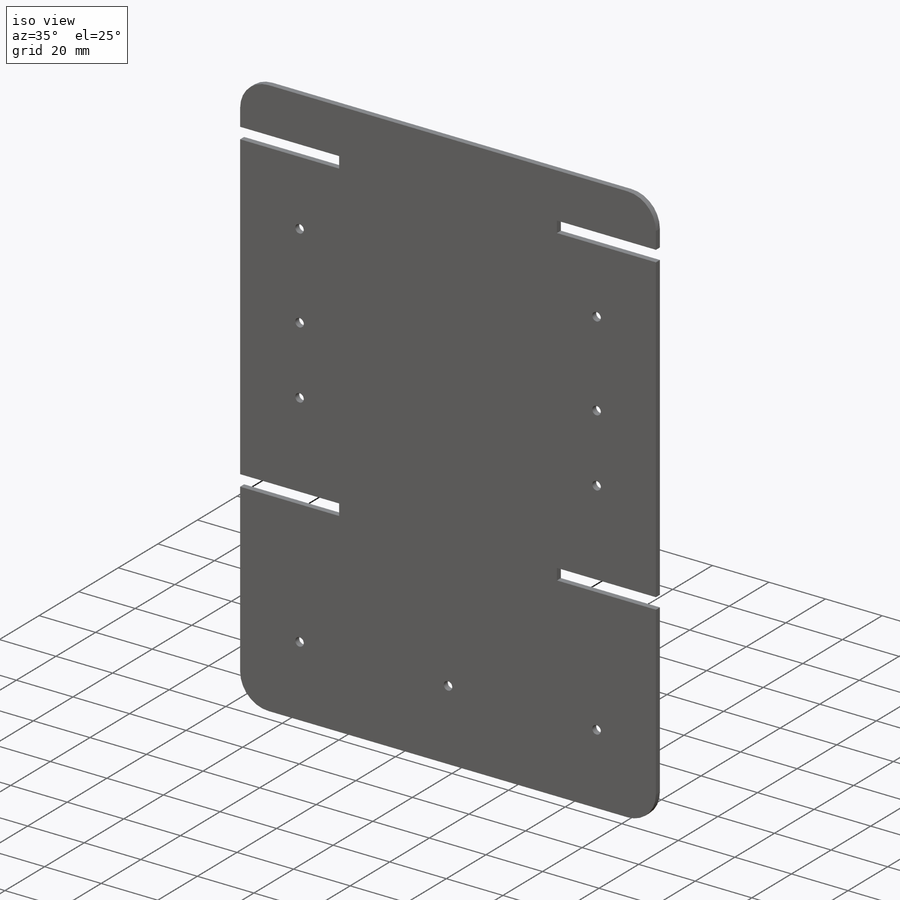
[diagram: iso view]
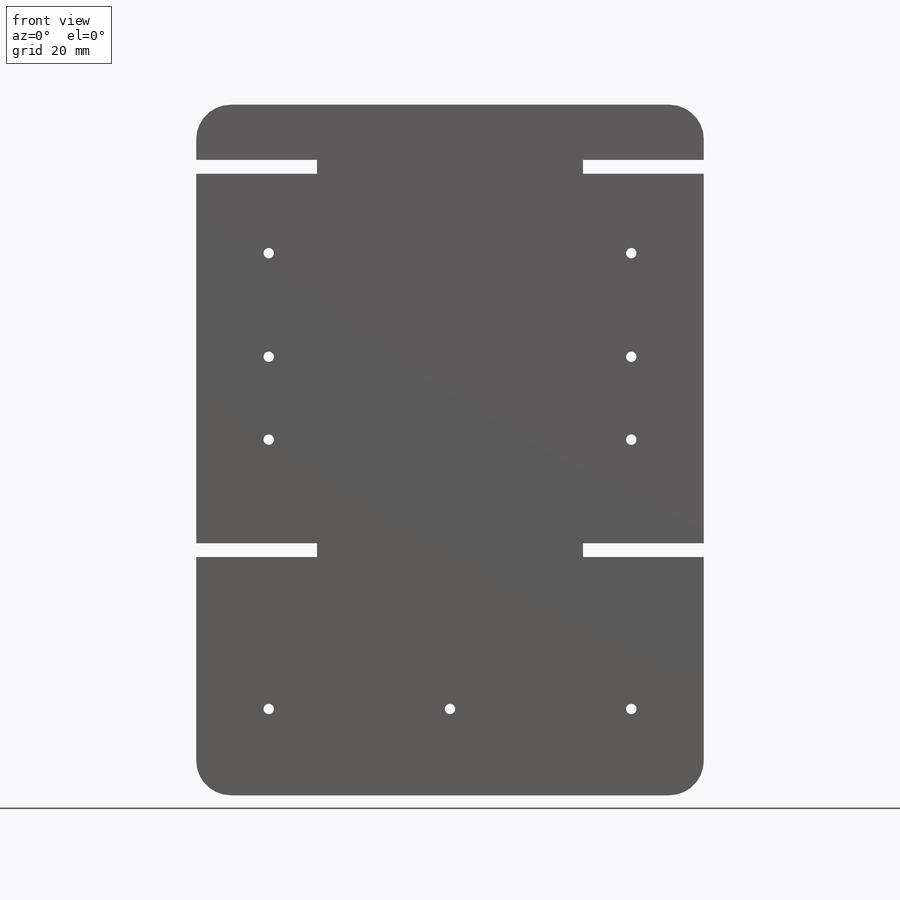
[diagram: front view]
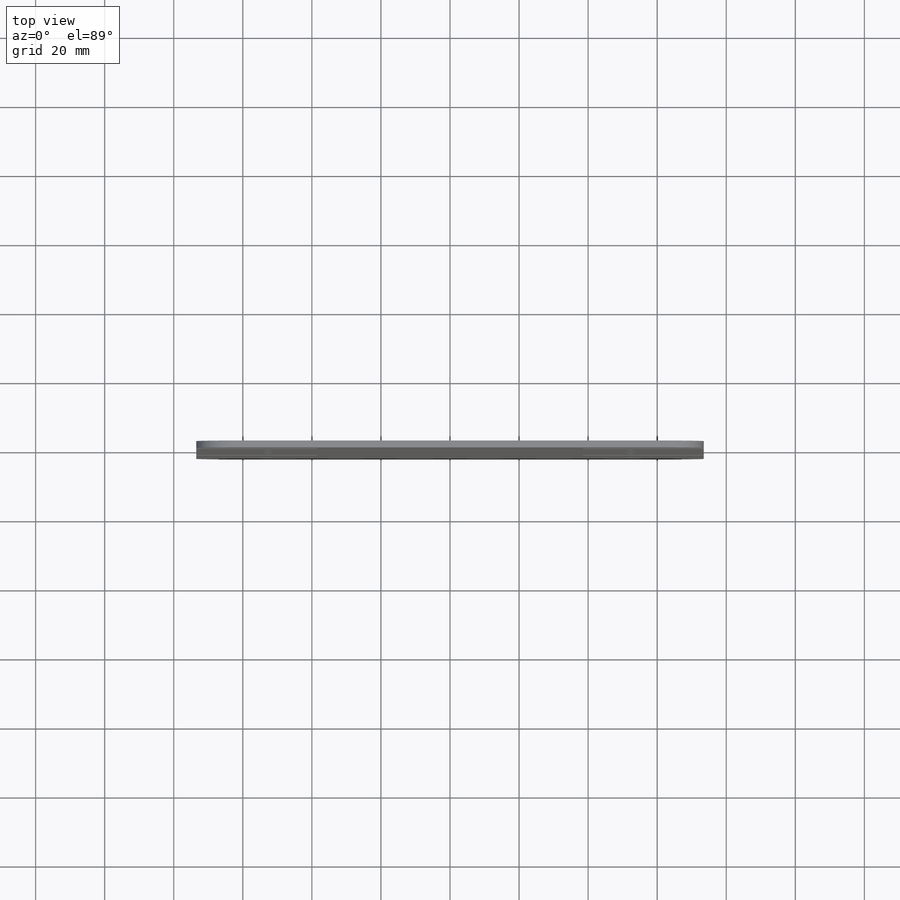
[diagram: top view]
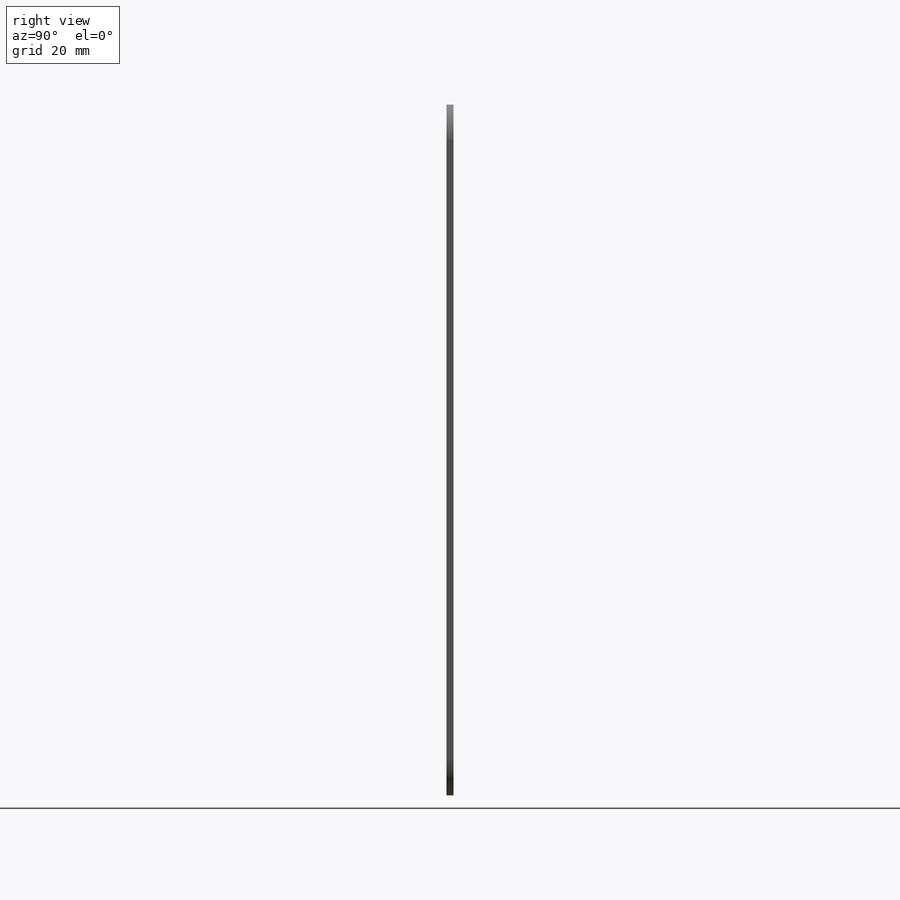
[diagram: right view]
SOLIDWORKS PART (.sldprt)
format: sldprt  version: not decoded by parser v0  size: 341,504 bytes
history: native  units: mm
features: plane x3, sketch x3, material x1, extrude x1, cut_extrude x1 (+9 scaffold rows collapsed)
feature tree (18):
  scaffold x9  (default folders/planes/origin — collapsed)
  material  "Plástico personalizado"
  plane  "Plano frontal"
  plane  "Plano superior"
  plane  "Plano direito"
  sketch  "Esboço1"  dims[D8=10.0mm D1=147.0mm D2=200.0mm D3=35.0mm D4=20.0mm D5=4.0mm D6=107.0mm D7=4.0mm]
  extrude  "Ressalto-extrusão1"  Depth=2mm
  sketch  "Esboço2"  dims[D5=3.0mm D1=23.0mm D2=53.0mm D3=77.0mm D4=25.0mm D6=21.0mm D7=21.0mm]
  cut_extrude  "Corte-extrusão1"  Depth=2mm
  sketch  "Esboço3"  dims[D1=13.5mm]
decode coverage: 5 of 5 modeling features carry decoded parameters
note: suppression state not decoded; provenance and decode notes live in map.json
